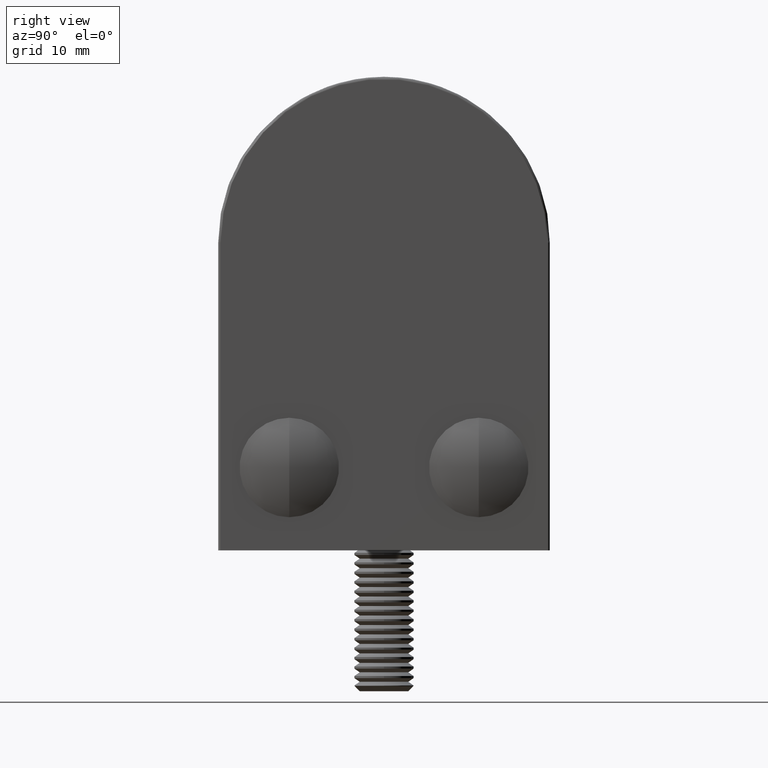
[diagram: clean part render]
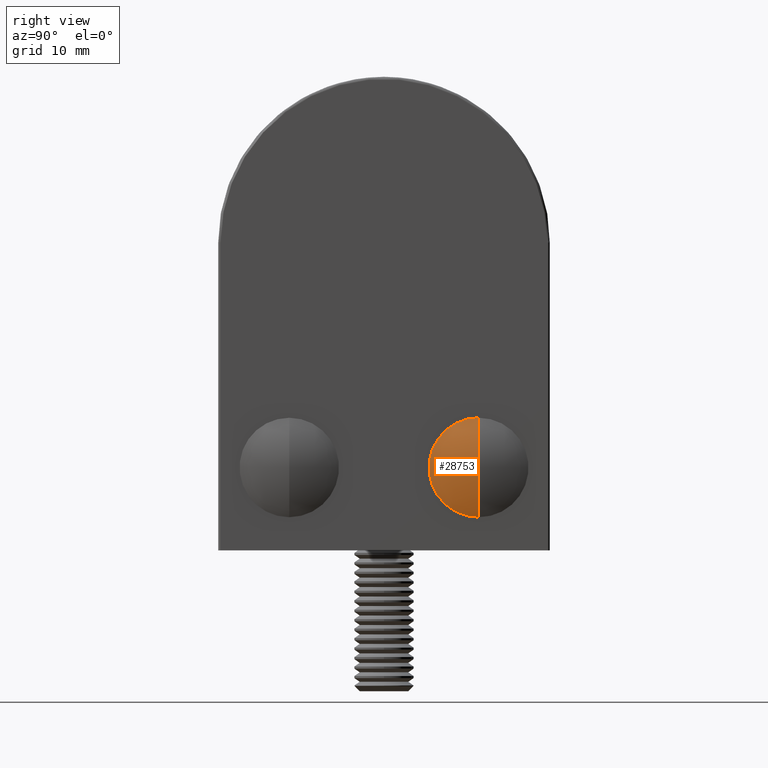
[diagram: same view with one face highlighted and labeled with its STEP entity id]
A machine part, right view. The second image highlights one B-rep face of the part: STEP entity #28753.
In plain terms, the highlighted spherical surface has radius 9.32 mm.
Its self-contained STEP definition (entity closure, byte-faithful):
#231 = AXIS2_PLACEMENT_3D ( 'NONE', #47872, #31628, #7655 ) ;
#5056 = ORIENTED_EDGE ( 'NONE', *, *, #6119, .F. ) ;
#6119 = EDGE_CURVE ( 'NONE', #9731, #37410, #31218, .T. ) ;
#7655 = DIRECTION ( 'NONE',  ( 1.000000000000000000, 0.0000000000000000000, 0.0000000000000000000 ) ) ;
#8211 = DIRECTION ( 'NONE',  ( 0.0000000000000000000, 0.0000000000000000000, -1.000000000000000000 ) ) ;
#9456 = SPHERICAL_SURFACE ( 'NONE', #231, 9.319999999999995000 ) ;
#9731 = VERTEX_POINT ( 'NONE', #14874 ) ;
#10433 = AXIS2_PLACEMENT_3D ( 'NONE', #17810, #25968, #14307 ) ;
#11582 = DIRECTION ( 'NONE',  ( 1.000000000000000000, 0.0000000000000000000, -1.224646799147353500E-016 ) ) ;
#13045 = ORIENTED_EDGE ( 'NONE', *, *, #14997, .F. ) ;
#13974 = EDGE_CURVE ( 'NONE', #20377, #37410, #50751, .T. ) ;
#14307 = DIRECTION ( 'NONE',  ( -1.000000000000000000, 0.0000000000000000000, 0.0000000000000000000 ) ) ;
#14874 = CARTESIAN_POINT ( 'NONE',  ( 4.200000000000000200, 8.673617379884035500E-016, 0.0000000000000000000 ) ) ;
#14997 = EDGE_CURVE ( 'NONE', #20377, #9731, #47810, .T. ) ;
#17810 = CARTESIAN_POINT ( 'NONE',  ( 0.0000000000000000000, -8.319999999999993200, 0.0000000000000000000 ) ) ;
#19662 = CARTESIAN_POINT ( 'NONE',  ( 0.0000000000000000000, -8.319999999999993200, 0.0000000000000000000 ) ) ;
#20377 = VERTEX_POINT ( 'NONE', #33369 ) ;
#20386 = ORIENTED_EDGE ( 'NONE', *, *, #13974, .T. ) ;
#20649 = EDGE_LOOP ( 'NONE', ( #13045, #20386, #5056 ) ) ;
#20661 = CARTESIAN_POINT ( 'NONE',  ( -4.200000000000000200, 8.673617379884035500E-016, 5.143516556418884900E-016 ) ) ;
#22202 = AXIS2_PLACEMENT_3D ( 'NONE', #19662, #24072, #11582 ) ;
#23943 = FACE_OUTER_BOUND ( 'NONE', #20649, .T. ) ;
#24072 = DIRECTION ( 'NONE',  ( 1.224646799147353200E-016, -0.0000000000000000000, 1.000000000000000000 ) ) ;
#25968 = DIRECTION ( 'NONE',  ( 0.0000000000000000000, 0.0000000000000000000, -1.000000000000000000 ) ) ;
#28753 = ADVANCED_FACE ( 'NONE', ( #23943 ), #9456, .T. ) ;
#31218 = CIRCLE ( 'NONE', #44032, 4.200000000000001100 ) ;
#31628 = DIRECTION ( 'NONE',  ( 0.0000000000000000000, 0.0000000000000000000, 1.000000000000000000 ) ) ;
#31834 = DIRECTION ( 'NONE',  ( -0.0000000000000000000, -1.000000000000000000, -0.0000000000000000000 ) ) ;
#32181 = CARTESIAN_POINT ( 'NONE',  ( 0.0000000000000000000, 0.0000000000000000000, 0.0000000000000000000 ) ) ;
#33369 = CARTESIAN_POINT ( 'NONE',  ( 5.706854084026663700E-016, 1.000000000000000900, 0.0000000000000000000 ) ) ;
#37410 = VERTEX_POINT ( 'NONE', #20661 ) ;
#44032 = AXIS2_PLACEMENT_3D ( 'NONE', #32181, #31834, #8211 ) ;
#47810 = CIRCLE ( 'NONE', #10433, 9.319999999999995000 ) ;
#47872 = CARTESIAN_POINT ( 'NONE',  ( 0.0000000000000000000, -8.319999999999993200, 0.0000000000000000000 ) ) ;
#50751 = CIRCLE ( 'NONE', #22202, 9.319999999999995000 ) ;